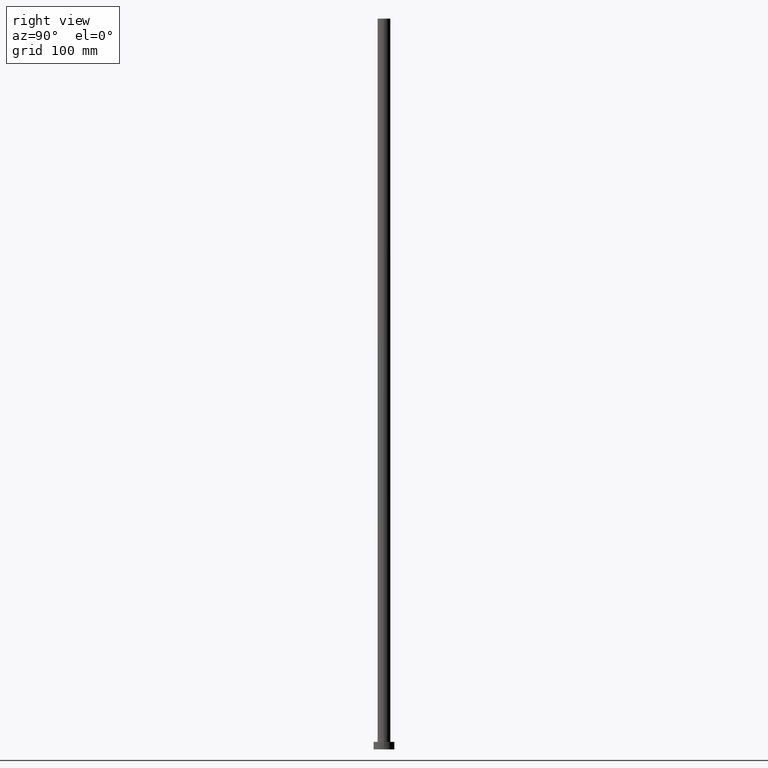
[diagram: clean part render]
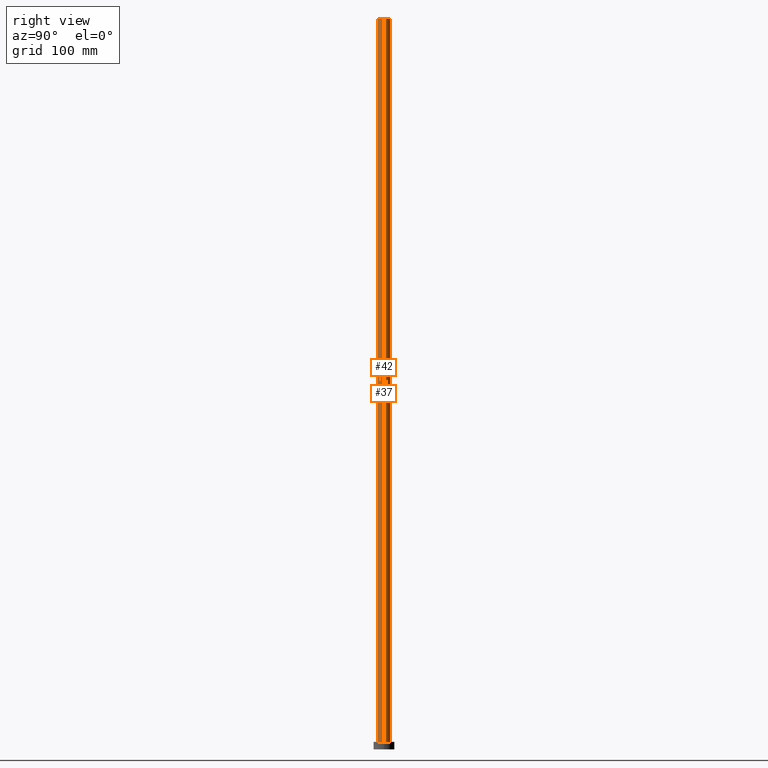
[diagram: same view with one multi-face feature highlighted, each face labeled with its STEP entity id]
A machine part, right view. The highlighted faces form ONE feature: a constant-radius fillet chain: 2 tangent blend faces with common blend radius 5.5 mm. The faces share edges in the B-rep.
Their STEP definitions:
[1] entity #37 (Cylinder):
#2 = CARTESIAN_POINT ( 'NONE',  ( -5.500000000000000000, 0.000000000000000000, 630.0000000000000000 ) ) ;
#14 = LINE ( 'NONE', #18, #94 ) ;
#18 = CARTESIAN_POINT ( 'NONE',  ( 5.500000000000000000, 6.735557395310441037E-16, 630.0000000000000000 ) ) ;
#30 = EDGE_CURVE ( 'NONE', #93, #225, #185, .T. ) ;
#34 = CARTESIAN_POINT ( 'NONE',  ( 0.000000000000000000, 0.000000000000000000, 630.0000000000000000 ) ) ;
#37 = ADVANCED_FACE ( 'NONE', ( #122 ), #157, .T. ) ;
#40 = DIRECTION ( 'NONE',  ( -1.000000000000000000, 0.000000000000000000, 0.000000000000000000 ) ) ;
#44 = LINE ( 'NONE', #2, #105 ) ;
#47 = ORIENTED_EDGE ( 'NONE', *, *, #160, .F. ) ;
#50 = VERTEX_POINT ( 'NONE', #231 ) ;
#56 = AXIS2_PLACEMENT_3D ( 'NONE', #97, #74, #154 ) ;
#74 = DIRECTION ( 'NONE',  ( 0.000000000000000000, 0.000000000000000000, 1.000000000000000000 ) ) ;
#83 = AXIS2_PLACEMENT_3D ( 'NONE', #92, #189, #88 ) ;
#86 = VERTEX_POINT ( 'NONE', #184 ) ;
#88 = DIRECTION ( 'NONE',  ( 1.000000000000000000, 0.000000000000000000, 0.000000000000000000 ) ) ;
#91 = EDGE_CURVE ( 'NONE', #86, #93, #14, .T. ) ;
#92 = CARTESIAN_POINT ( 'NONE',  ( 0.000000000000000000, 0.000000000000000000, 630.0000000000000000 ) ) ;
#93 = VERTEX_POINT ( 'NONE', #102 ) ;
#94 = VECTOR ( 'NONE', #198, 1000.000000000000000 ) ;
#97 = CARTESIAN_POINT ( 'NONE',  ( 0.000000000000000000, 0.000000000000000000, 6.500000000000000000 ) ) ;
#102 = CARTESIAN_POINT ( 'NONE',  ( 5.500000000000000000, 6.735557395310441037E-16, 6.500000000000000000 ) ) ;
#105 = VECTOR ( 'NONE', #203, 1000.000000000000000 ) ;
#119 = EDGE_CURVE ( 'NONE', #50, #225, #44, .T. ) ;
#122 = FACE_OUTER_BOUND ( 'NONE', #206, .T. ) ;
#154 = DIRECTION ( 'NONE',  ( 1.000000000000000000, 0.000000000000000000, 0.000000000000000000 ) ) ;
#157 = CYLINDRICAL_SURFACE ( 'NONE', #243, 5.500000000000000000 ) ;
#160 = EDGE_CURVE ( 'NONE', #86, #50, #222, .T. ) ;
#184 = CARTESIAN_POINT ( 'NONE',  ( 5.500000000000000000, 6.735557395310441037E-16, 630.0000000000000000 ) ) ;
#185 = CIRCLE ( 'NONE', #56, 5.500000000000000000 ) ;
#189 = DIRECTION ( 'NONE',  ( 0.000000000000000000, 0.000000000000000000, 1.000000000000000000 ) ) ;
#198 = DIRECTION ( 'NONE',  ( -0.000000000000000000, -0.000000000000000000, -1.000000000000000000 ) ) ;
#203 = DIRECTION ( 'NONE',  ( -0.000000000000000000, -0.000000000000000000, -1.000000000000000000 ) ) ;
#206 = EDGE_LOOP ( 'NONE', ( #47, #247, #241, #211 ) ) ;
#211 = ORIENTED_EDGE ( 'NONE', *, *, #119, .F. ) ;
#215 = CARTESIAN_POINT ( 'NONE',  ( -5.500000000000000000, 0.000000000000000000, 6.500000000000000000 ) ) ;
#222 = CIRCLE ( 'NONE', #83, 5.500000000000000000 ) ;
#225 = VERTEX_POINT ( 'NONE', #215 ) ;
#231 = CARTESIAN_POINT ( 'NONE',  ( -5.500000000000000000, 0.000000000000000000, 630.0000000000000000 ) ) ;
#234 = DIRECTION ( 'NONE',  ( -0.000000000000000000, -0.000000000000000000, -1.000000000000000000 ) ) ;
#241 = ORIENTED_EDGE ( 'NONE', *, *, #30, .T. ) ;
#243 = AXIS2_PLACEMENT_3D ( 'NONE', #34, #234, #40 ) ;
#247 = ORIENTED_EDGE ( 'NONE', *, *, #91, .T. ) ;
[2] entity #42 (Cylinder):
#2 = CARTESIAN_POINT ( 'NONE',  ( -5.500000000000000000, 0.000000000000000000, 630.0000000000000000 ) ) ;
#9 = CIRCLE ( 'NONE', #45, 5.500000000000000000 ) ;
#14 = LINE ( 'NONE', #18, #94 ) ;
#15 = AXIS2_PLACEMENT_3D ( 'NONE', #25, #23, #48 ) ;
#18 = CARTESIAN_POINT ( 'NONE',  ( 5.500000000000000000, 6.735557395310441037E-16, 630.0000000000000000 ) ) ;
#19 = CARTESIAN_POINT ( 'NONE',  ( 0.000000000000000000, 0.000000000000000000, 630.0000000000000000 ) ) ;
#23 = DIRECTION ( 'NONE',  ( 0.000000000000000000, 0.000000000000000000, 1.000000000000000000 ) ) ;
#25 = CARTESIAN_POINT ( 'NONE',  ( 0.000000000000000000, 0.000000000000000000, 6.500000000000000000 ) ) ;
#32 = CYLINDRICAL_SURFACE ( 'NONE', #223, 5.500000000000000000 ) ;
#42 = ADVANCED_FACE ( 'NONE', ( #100 ), #32, .T. ) ;
#44 = LINE ( 'NONE', #2, #105 ) ;
#45 = AXIS2_PLACEMENT_3D ( 'NONE', #158, #140, #54 ) ;
#48 = DIRECTION ( 'NONE',  ( 1.000000000000000000, 0.000000000000000000, 0.000000000000000000 ) ) ;
#50 = VERTEX_POINT ( 'NONE', #231 ) ;
#53 = EDGE_CURVE ( 'NONE', #50, #86, #9, .T. ) ;
#54 = DIRECTION ( 'NONE',  ( 1.000000000000000000, 0.000000000000000000, 0.000000000000000000 ) ) ;
#60 = EDGE_LOOP ( 'NONE', ( #113, #116, #182, #246 ) ) ;
#86 = VERTEX_POINT ( 'NONE', #184 ) ;
#91 = EDGE_CURVE ( 'NONE', #86, #93, #14, .T. ) ;
#93 = VERTEX_POINT ( 'NONE', #102 ) ;
#94 = VECTOR ( 'NONE', #198, 1000.000000000000000 ) ;
#99 = EDGE_CURVE ( 'NONE', #225, #93, #130, .T. ) ;
#100 = FACE_OUTER_BOUND ( 'NONE', #60, .T. ) ;
#102 = CARTESIAN_POINT ( 'NONE',  ( 5.500000000000000000, 6.735557395310441037E-16, 6.500000000000000000 ) ) ;
#105 = VECTOR ( 'NONE', #203, 1000.000000000000000 ) ;
#113 = ORIENTED_EDGE ( 'NONE', *, *, #91, .F. ) ;
#116 = ORIENTED_EDGE ( 'NONE', *, *, #53, .F. ) ;
#119 = EDGE_CURVE ( 'NONE', #50, #225, #44, .T. ) ;
#130 = CIRCLE ( 'NONE', #15, 5.500000000000000000 ) ;
#140 = DIRECTION ( 'NONE',  ( 0.000000000000000000, 0.000000000000000000, 1.000000000000000000 ) ) ;
#158 = CARTESIAN_POINT ( 'NONE',  ( 0.000000000000000000, 0.000000000000000000, 630.0000000000000000 ) ) ;
#180 = DIRECTION ( 'NONE',  ( -1.000000000000000000, 0.000000000000000000, 0.000000000000000000 ) ) ;
#182 = ORIENTED_EDGE ( 'NONE', *, *, #119, .T. ) ;
#184 = CARTESIAN_POINT ( 'NONE',  ( 5.500000000000000000, 6.735557395310441037E-16, 630.0000000000000000 ) ) ;
#198 = DIRECTION ( 'NONE',  ( -0.000000000000000000, -0.000000000000000000, -1.000000000000000000 ) ) ;
#203 = DIRECTION ( 'NONE',  ( -0.000000000000000000, -0.000000000000000000, -1.000000000000000000 ) ) ;
#215 = CARTESIAN_POINT ( 'NONE',  ( -5.500000000000000000, 0.000000000000000000, 6.500000000000000000 ) ) ;
#218 = DIRECTION ( 'NONE',  ( -0.000000000000000000, -0.000000000000000000, -1.000000000000000000 ) ) ;
#223 = AXIS2_PLACEMENT_3D ( 'NONE', #19, #218, #180 ) ;
#225 = VERTEX_POINT ( 'NONE', #215 ) ;
#231 = CARTESIAN_POINT ( 'NONE',  ( -5.500000000000000000, 0.000000000000000000, 630.0000000000000000 ) ) ;
#246 = ORIENTED_EDGE ( 'NONE', *, *, #99, .T. ) ;